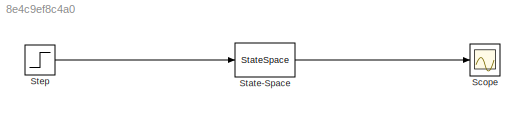
MODEL slx_8e4c9ef8c4a0
KIND model
CONFIG AbsTol = auto
CONFIG EnableMultiTasking = off
CONFIG FixedStep = auto
CONFIG MaxStep = auto
CONFIG MinStep = auto
CONFIG RelTol = 1e-3
CONFIG SampleTimeConstraint = Unconstrained
CONFIG Solver = VariableStepAuto
CONFIG SolverName = VariableStepAuto
CONFIG StartTime = 0.0
CONFIG StopTime = 100
BLOCK [Scope] Scope
  NumInputPorts = 1
  Ports = [1]
  ScopeSpecificationString = Simulink.scopes.TimeScopeBlockCfg('CurrentConfiguration', extmgr.ConfigurationSet(extmgr.Configuration('Core','General UI',true),extmgr.Configuration('Core','Source UI',true),extmgr.Configuration('Sources','WiredSimulink',true),extmgr.Configuration('Visuals','Time Domain',true,'SerializedDisplays',{struct('MinYLimReal','-0.45836','MaxYLimReal','4.1252','YLabelReal','','MinYLimMag','0.00000','MaxYL...<+1374ch>
BLOCK [StateSpace] State-Space
  A = [0 1; 0 -b/m]
  B = [0; 1/m]
  C = [1 0;0 1]
  ContinuousStateAttributes = {'position', 'velocity'}
  D = [0; 0]
  InitialCondition = [0; 0]
  Ports = [1, 1]
BLOCK [Step] Step
  After = 0.02
  SampleTime = 0
LINE State-Space:1 -> Scope:1
LINE Step:1 -> State-Space:1
